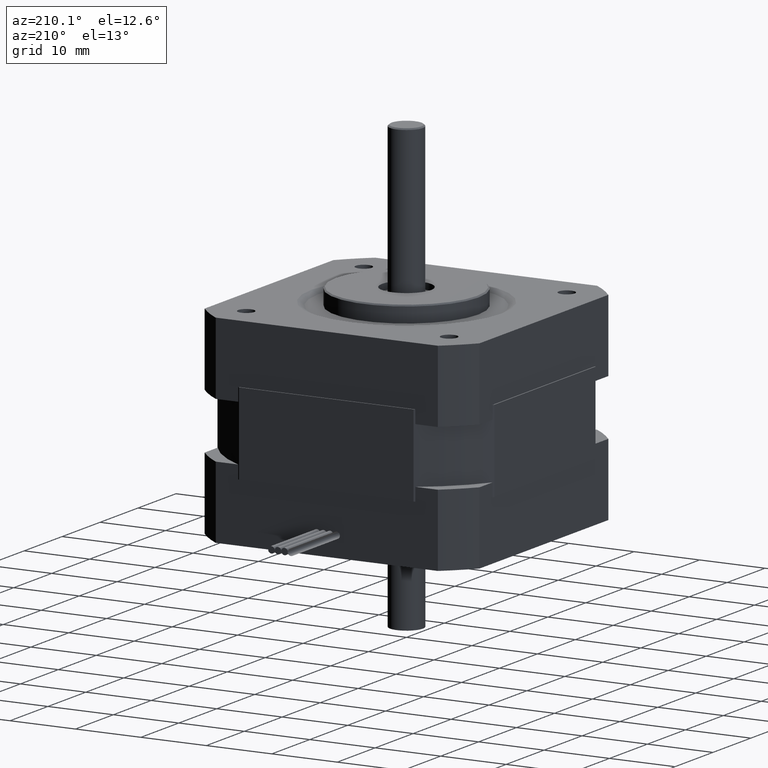
[diagram: clean part render]
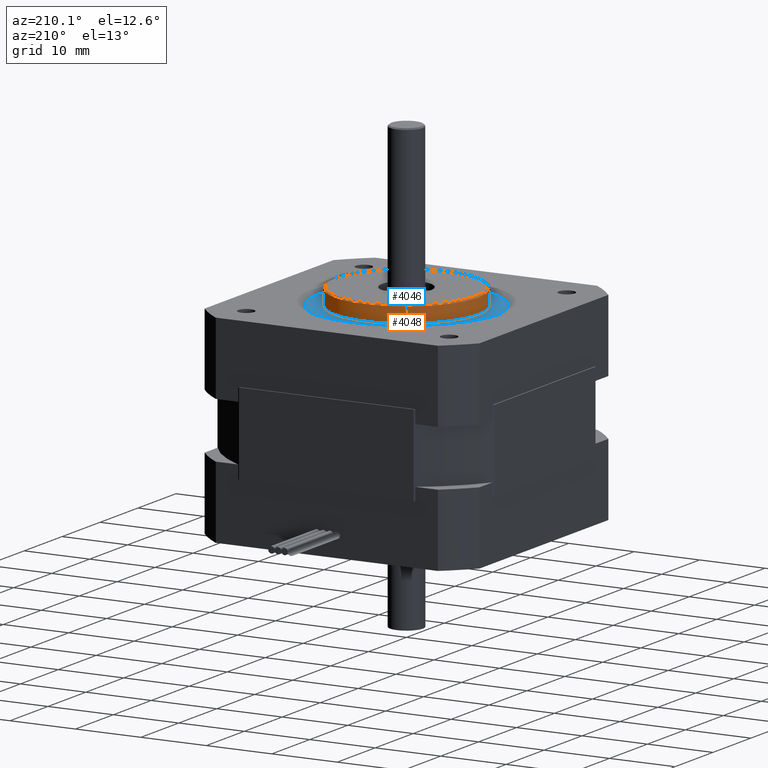
[diagram: same view with the hole feature highlighted: cylindrical wall and planar end face, labeled with their STEP entity ids]
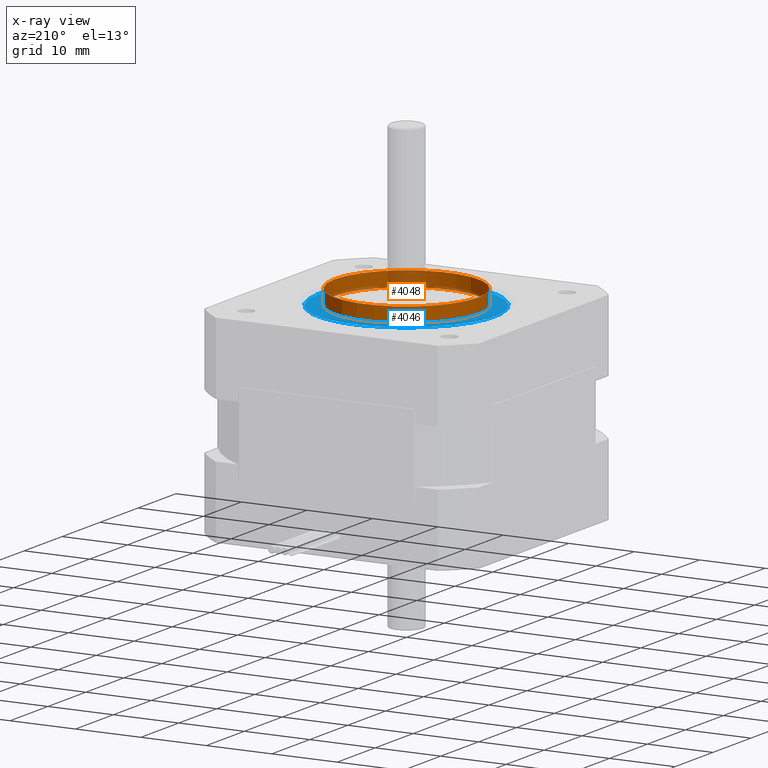
[diagram: x-ray of the same camera — body ghosted, the hole faces saturated]
A machine part, auxiliary view. The highlighted faces form one hole feature of diameter 22 mm: the cylindrical wall (entity #4048, orange) and its adjacent planar end face (entity #4046, blue) — they share a circular edge in the B-rep.
The next image is the same camera in x-ray (body ghosted, the hole faces saturated) — the bore reads through the body.
Wall:
#754=FACE_BOUND('',#1181,.T.);
#833=CYLINDRICAL_SURFACE('',#4350,11.);
#904=FACE_OUTER_BOUND('',#1180,.T.);
#1180=EDGE_LOOP('',(#2787));
#1181=EDGE_LOOP('',(#2788));
#1514=CIRCLE('',#4346,11.);
#1516=CIRCLE('',#4349,11.);
#1778=VERTEX_POINT('',#6233);
#1780=VERTEX_POINT('',#6238);
#2186=EDGE_CURVE('',#1778,#1778,#1514,.T.);
#2188=EDGE_CURVE('',#1780,#1780,#1516,.T.);
#2787=ORIENTED_EDGE('',*,*,#2186,.T.);
#2788=ORIENTED_EDGE('',*,*,#2188,.F.);
#4048=ADVANCED_FACE('',(#904,#754),#833,.T.);
#4346=AXIS2_PLACEMENT_3D('',#6234,#4944,#4945);
#4349=AXIS2_PLACEMENT_3D('',#6239,#4950,#4951);
#4350=AXIS2_PLACEMENT_3D('',#6240,#4952,#4953);
#4944=DIRECTION('center_axis',(-8.74300631892311E-16,-2.59037577520082E-32,
1.));
#4945=DIRECTION('ref_axis',(-1.,-7.54604712049907E-17,-8.7430063189231E-16));
#4950=DIRECTION('center_axis',(-8.74300631892311E-16,-2.59037577520082E-32,
1.));
#4951=DIRECTION('ref_axis',(-1.,-7.54604712049907E-17,-8.7430063189231E-16));
#4952=DIRECTION('center_axis',(-8.74300631892311E-16,-2.59037577520082E-32,
1.));
#4953=DIRECTION('ref_axis',(-1.,-7.54604712049907E-17,-8.7430063189231E-16));
#6233=CARTESIAN_POINT('',(11.,6.90938593729828E-15,5.4999999999999));
#6234=CARTESIAN_POINT('Origin',(-9.42678372192386E-15,4.73220975404338E-15,
5.49999999999989));
#6238=CARTESIAN_POINT('',(11.,6.90934193729828E-15,7.7999999999999));
#6239=CARTESIAN_POINT('Origin',(-1.14376751752762E-14,4.73220975404338E-15,
7.79999999999989));
#6240=CARTESIAN_POINT('Origin',(-9.86393403787002E-15,4.73220975404338E-15,
5.99999999999989));
End face:
#619=PLANE('',#4345);
#752=FACE_BOUND('',#1177,.T.);
#902=FACE_OUTER_BOUND('',#1176,.T.);
#1176=EDGE_LOOP('',(#2783));
#1177=EDGE_LOOP('',(#2784));
#1508=CIRCLE('',#4338,13.5);
#1514=CIRCLE('',#4346,11.);
#1772=VERTEX_POINT('',#6217);
#1778=VERTEX_POINT('',#6233);
#2178=EDGE_CURVE('',#1772,#1772,#1508,.T.);
#2186=EDGE_CURVE('',#1778,#1778,#1514,.T.);
#2783=ORIENTED_EDGE('',*,*,#2178,.T.);
#2784=ORIENTED_EDGE('',*,*,#2186,.F.);
#4046=ADVANCED_FACE('',(#902,#752),#619,.F.);
#4338=AXIS2_PLACEMENT_3D('',#6218,#4926,#4927);
#4345=AXIS2_PLACEMENT_3D('',#6232,#4942,#4943);
#4346=AXIS2_PLACEMENT_3D('',#6234,#4944,#4945);
#4926=DIRECTION('center_axis',(-8.74300631892311E-16,-2.59037577520082E-32,
1.));
#4927=DIRECTION('ref_axis',(-1.,-7.54604712049907E-17,-8.74300631892311E-16));
#4942=DIRECTION('center_axis',(8.74300631892311E-16,2.59037577520082E-32,
-1.));
#4943=DIRECTION('ref_axis',(-1.,-7.54604712049907E-17,-8.88178419700125E-16));
#4944=DIRECTION('center_axis',(-8.74300631892311E-16,-2.59037577520082E-32,
1.));
#4945=DIRECTION('ref_axis',(-1.,-7.54604712049907E-17,-8.7430063189231E-16));
#6217=CARTESIAN_POINT('',(13.5,7.40419911531075E-15,5.4999999999999));
#6218=CARTESIAN_POINT('Origin',(-9.42678372192386E-15,4.73220975404338E-15,
5.49999999999989));
#6232=CARTESIAN_POINT('Origin',(-9.42678372192386E-15,4.73220975404338E-15,
5.49999999999989));
#6233=CARTESIAN_POINT('',(11.,6.90938593729828E-15,5.4999999999999));
#6234=CARTESIAN_POINT('Origin',(-9.42678372192386E-15,4.73220975404338E-15,
5.49999999999989));